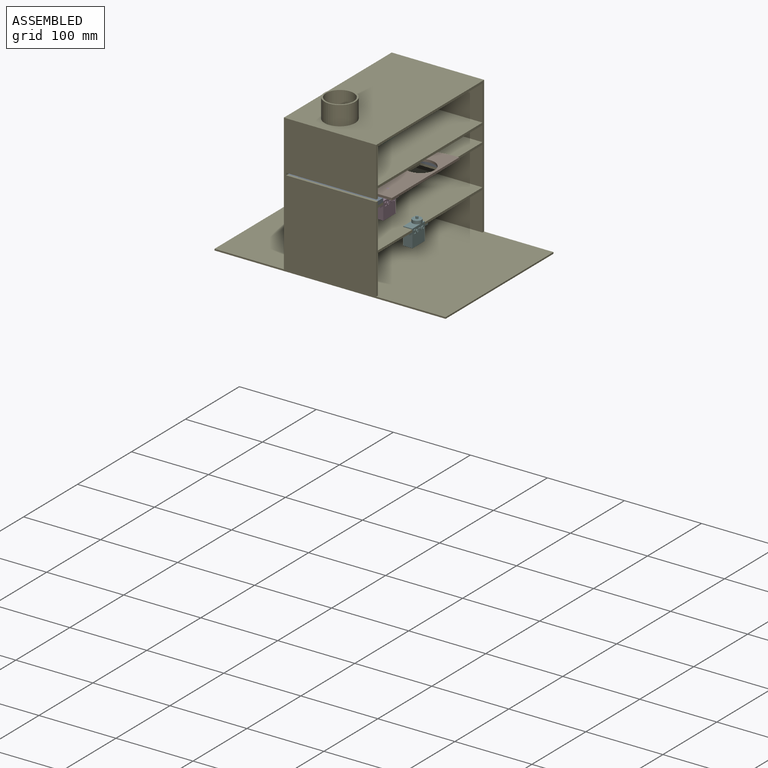
[diagram: assembled view]
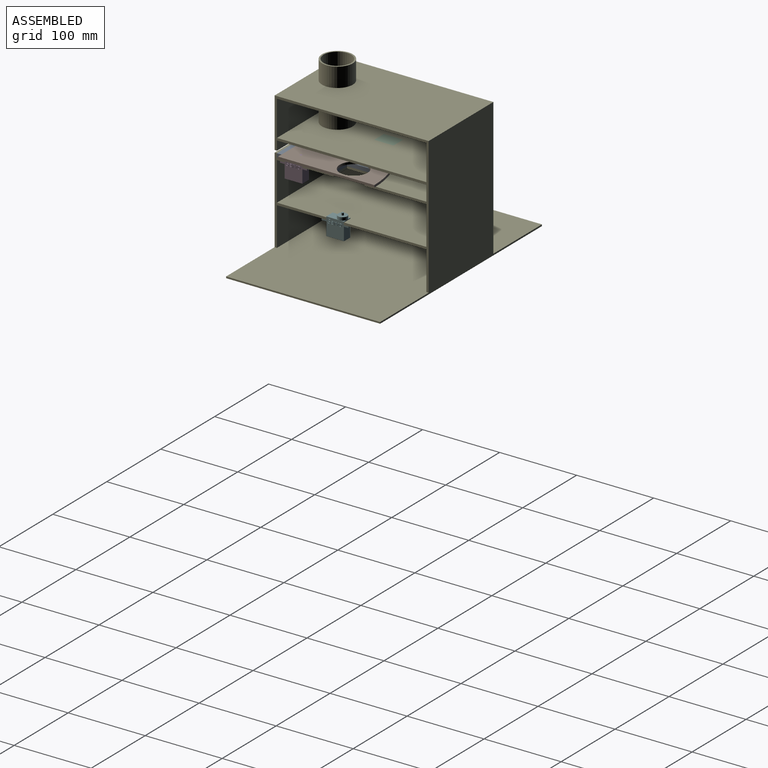
[diagram: assembled view, second angle]
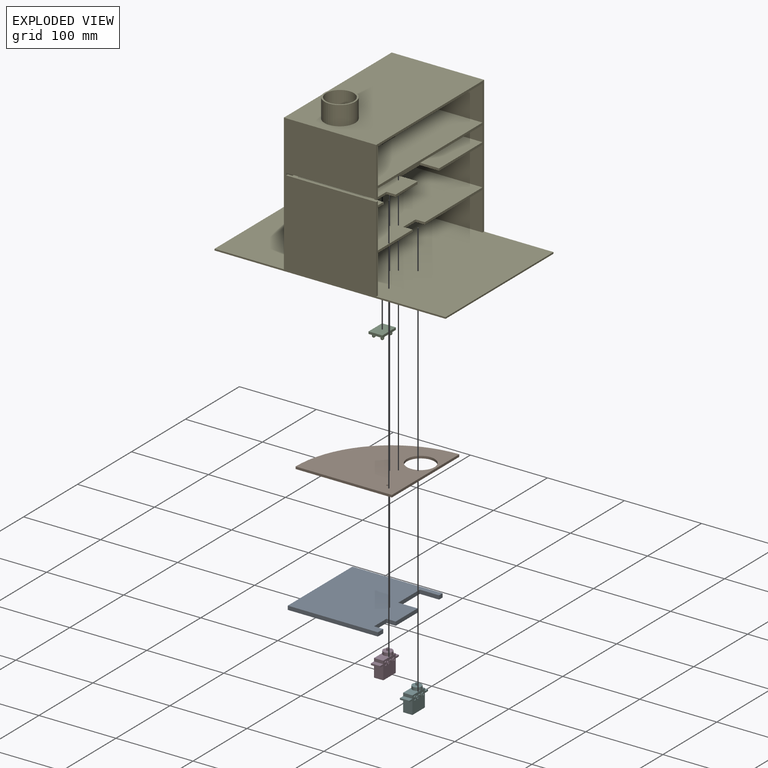
[diagram: exploded view]
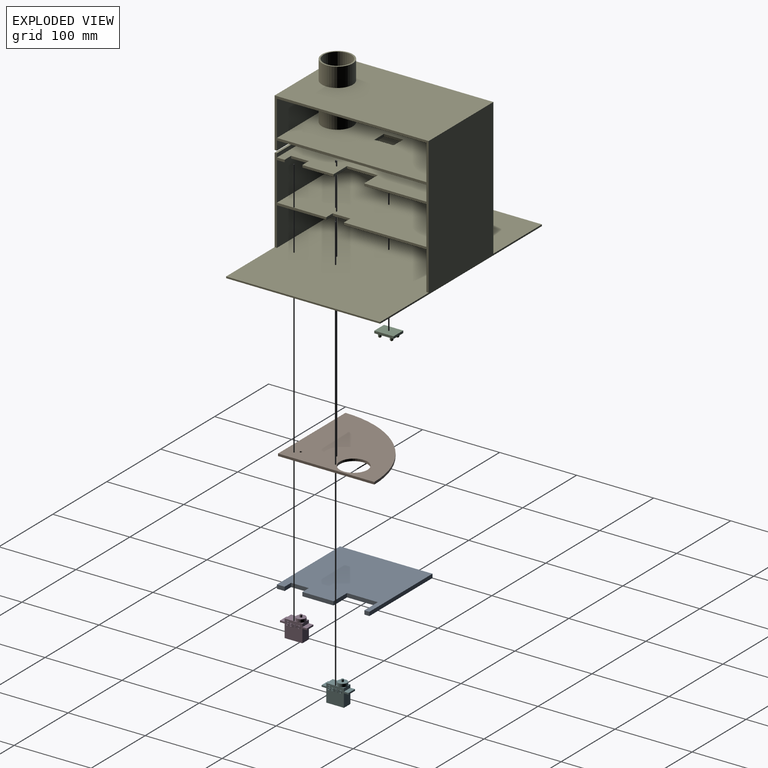
[diagram: exploded view, second angle]
ASSEMBLY  parts=6 mates=5
PART A: 14 faces, bbox 120x117x5 mm
  f0: plane 10x5mm, normal (0,-1,0), area 50mm2, adj f2,f4,f7,f11
  f1: plane 40.5x5mm, normal (0,-1,0), area 202.5mm2, adj f2,f7,f8,f13
  f2: plane 120x117mm, normal (0,0,-1), area 12764mm2, adj f0,f1,f3,f4,f5,f6,f8,f9
  f3: plane 120x5mm, normal (0,1,0), area 600mm2, adj f2,f4,f6,f7
  f4: plane 117x5mm, normal (-1,0,0), area 585mm2, adj f0,f2,f3,f7
  f5: plane 6.5x5mm, normal (0,-1,0), area 32.5mm2, adj f2,f6,f7,f10
  f6: plane 117x5mm, normal (1,0,0), area 585mm2, adj f2,f3,f5,f7
  f7: plane 120x117mm, normal (0,0,1), area 12764mm2, adj f0,f1,f3,f4,f5,f6,f8,f9
  f8: plane 25x5mm, normal (1,0,0), area 125mm2, adj f1,f2,f7,f9
  f9: plane 40x5mm, normal (0,-1,0), area 200mm2, adj f2,f7,f8,f10
  f10: plane 25x5mm, normal (-1,0,0), area 125mm2, adj f2,f5,f7,f9
  f11: plane 12x5mm, normal (1,0,0), area 60mm2, adj f0,f2,f7,f12
  f12: plane 23x5mm, normal (0,-1,0), area 115mm2, adj f2,f7,f11,f13
  f13: plane 12x5mm, normal (-1,0,0), area 60mm2, adj f1,f2,f7,f12
PART B: 7 faces, bbox 125x125x3 mm
  f0: plane 125x3mm, normal (0,-1,0), area 375mm2, adj f1,f2,f3,f4
  f1: cylinder r=125mm len=125mm, axis (0,0,-1), area 589mm2, adj f0,f2,f3,f4
  f2: plane 125x3mm, normal (-1,0,0), area 375mm2, adj f0,f1,f3,f4
  f3: plane 125x125mm, normal (0,0,1), area 11246.9mm2, adj f0,f1,f2,f5,f6
  f4: plane 125x125mm, normal (0,0,-1), area 11246.9mm2, adj f0,f1,f2,f5,f6
  f5: cylinder r=18mm len=36mm, axis (0,0,1), area 339.3mm2, adj f3,f4
  f6: cylinder r=1.5mm len=3mm, axis (0,0,1), area 28.3mm2, adj f3,f4
PART C: 19 faces, bbox 25x18x8 mm
  f0: plane 25x3mm, normal (0,1,0), area 75mm2, adj f1,f3,f4,f5
  f1: plane 18x3mm, normal (-1,0,0), area 54mm2, adj f0,f2,f4,f5
  f2: plane 25x3mm, normal (0,-1,0), area 75mm2, adj f1,f3,f4,f5
  f3: plane 18x3mm, normal (1,0,0), area 54mm2, adj f0,f2,f4,f5
  f4: plane 25x18mm, normal (0,0,1), area 390.7mm2, adj f0,f1,f2,f3,f6,f7,f8,f9
  f5: plane 25x18mm, normal (0,0,-1), area 450mm2, adj f0,f1,f2,f3
  f6: cylinder r=2mm len=4mm, axis (0,0,-1), area 37.7mm2, adj f4,f11
  f7: cylinder r=2mm len=4mm, axis (0,0,-1), area 37.7mm2, adj f4,f10
  f8: cylinder r=2mm len=4mm, axis (0,0,-1), area 37.7mm2, adj f4,f12
  f9: cylinder r=2mm len=4mm, axis (0,0,-1), area 37.7mm2, adj f4,f13
  f10: sphere r=2mm, area 25.1mm2, adj f7
  f11: sphere r=2mm, area 25.1mm2, adj f6
  f12: sphere r=2mm, area 25.1mm2, adj f8
  f13: sphere r=2mm, area 25.1mm2, adj f9
  f14: plane 1x1mm, normal (0,0,1), area 1mm2, adj f15,f16,f17,f18
  f15: plane 3x1mm, normal (-0.71,0,0.71), area 2.8mm2, adj f4,f14,f16,f17
  f16: plane 3x1mm, normal (0,-0.71,0.71), area 2.8mm2, adj f4,f14,f15,f18
  f17: plane 3x1mm, normal (0,0.71,0.71), area 2.8mm2, adj f4,f14,f15,f18
  f18: plane 3x1mm, normal (0.71,0,0.71), area 2.8mm2, adj f4,f14,f16,f17
PART D: 113 faces, bbox 35x13x30 mm
  f0: plane 35x23mm, normal (0,-1,0), area 519.9mm2, adj f2,f3,f4,f5,f7,f8,f9,f10
  f1: plane 6x6mm, normal (0,0,1), area 7.7mm2, adj f3,f6,f16
  f2: plane 17x12mm, normal (0,0,1), area 147.5mm2, adj f0,f5,f6,f16
  f3: plane 12x4mm, normal (1,0,0), area 48mm2, adj f0,f1,f6,f8,f13
  f4: plane 17x12mm, normal (1,0,0), area 204mm2, adj f0,f6,f9,f14
  f5: plane 12x4mm, normal (-1,0,0), area 48mm2, adj f0,f2,f6,f10
  f6: plane 35x23mm, normal (0,1,0), area 553mm2, adj f1,f2,f3,f4,f5,f7,f9,f10
  f7: plane 17x12mm, normal (-1,0,0), area 204mm2, adj f0,f6,f9,f11
  f8: plane 6x6mm, normal (0,0,1), area 7.7mm2, adj f0,f3,f16
  f9: plane 23x12mm, normal (0,0,-1), area 276mm2, adj f0,f4,f6,f7
  f10: plane 12x6mm, normal (0,0,1), area 72mm2, adj f0,f5,f6,f12
  f11: plane 12x6mm, normal (0,0,-1), area 72mm2, adj f0,f6,f7,f12
  f12: plane 12x2mm, normal (-1,0,0), area 24mm2, adj f0,f6,f10,f11
  f13: plane 12x6mm, normal (0,0,1), area 72mm2, adj f0,f3,f6,f15
  f14: plane 12x6mm, normal (0,0,-1), area 72mm2, adj f0,f4,f6,f15
  f15: plane 12x2mm, normal (1,0,0), area 24mm2, adj f0,f6,f13,f14
  f16: cylinder r=6mm len=12mm, axis (0,0,-1), area 150.8mm2, adj f1,f2,f8,f17
  f17: plane 12x12mm, normal (0,0,1), area 106mm2, adj f16,f18
  f18: cylinder r=1.5mm len=3mm, axis (0,0,-1), area 28.3mm2, adj f17,f19
  f19: plane 3x3mm, normal (0,0,1), area 7.1mm2, adj f18
  f20: extruded ~1x0.93mm, area 1mm2, adj f0,f21,f46,f47
  f21: extruded ~1x0.48mm, area 0.5mm2, adj f0,f20,f22,f47
  f22: extruded ~1x0.4mm, area 0.4mm2, adj f0,f21,f23,f47
  f23: extruded ~1x0.78mm, area 0.9mm2, adj f0,f22,f24,f47
  f24: extruded ~1x0.95mm, area 1.1mm2, adj f0,f23,f25,f47
  f25: extruded ~1x0.92mm, area 1mm2, adj f0,f24,f26,f47
  f26: extruded ~1.03x1mm, area 1.2mm2, adj f0,f25,f27,f47
  f27: extruded ~1x0.77mm, area 0.8mm2, adj f0,f26,f28,f47
  f28: extruded ~1x0.36mm, area 0.5mm2, adj f0,f27,f29,f47
  f29: extruded ~1x0.44mm, area 0.5mm2, adj f0,f28,f30,f47
  f30: extruded ~1x0.63mm, area 0.7mm2, adj f0,f29,f31,f47
  f31: extruded ~1x0.9mm, area 0.9mm2, adj f0,f30,f32,f47
  f32: extruded ~1x0.74mm, area 0.7mm2, adj f0,f31,f33,f47
  f33: extruded ~1x0.69mm, area 0.7mm2, adj f0,f32,f34,f47
  f34: plane 1x0.58mm, normal (-1,0,0), area 0.6mm2, adj f0,f33,f35,f47
  f35: extruded ~1.41x1mm, area 1.4mm2, adj f0,f34,f36,f47
  f36: extruded ~1.34x1mm, area 1.4mm2, adj f0,f35,f37,f47
  f37: extruded ~1.06x1mm, area 1.2mm2, adj f0,f36,f38,f47
  f38: extruded ~1x0.86mm, area 0.9mm2, adj f0,f37,f39,f47
  f39: extruded ~1.12x1mm, area 1.3mm2, adj f0,f38,f40,f47
  f40: extruded ~1x0.72mm, area 0.8mm2, adj f0,f39,f41,f47
  f41: extruded ~1x0.33mm, area 0.5mm2, adj f0,f40,f42,f47
  f42: extruded ~1x0.44mm, area 0.5mm2, adj f0,f41,f43,f47
  f43: extruded ~1x0.57mm, area 0.7mm2, adj f0,f42,f44,f47
  f44: extruded ~1x0.74mm, area 0.8mm2, adj f0,f43,f45,f47
  f45: extruded ~1.24x1mm, area 1.3mm2, adj f0,f44,f46,f47
  f46: plane 1x0.52mm, normal (0.94,0,-0.34), area 0.6mm2, adj f0,f20,f45,f47
  f47: plane 5.3x3.24mm, normal (0,-1,0), area 6.1mm2, adj f20,f21,f22,f23,f24,f25,f26,f27
  f48: extruded ~1x0.74mm, area 0.8mm2, adj f49,f66,f67,f68
  f49: extruded ~1x0.71mm, area 0.8mm2, adj f48,f50,f67,f68
  f50: extruded ~1x0.85mm, area 0.9mm2, adj f49,f51,f67,f68
  f51: plane 2.02x1mm, normal (0,0,1), area 2mm2, adj f50,f66,f67,f68
  f52: extruded ~1.35x1mm, area 1.5mm2, adj f0,f53,f65,f67
  f53: extruded ~1x0.67mm, area 0.7mm2, adj f0,f52,f54,f67
  f54: extruded ~1x0.59mm, area 0.6mm2, adj f0,f53,f55,f67
  f55: plane 1x0.52mm, normal (1,0,0), area 0.5mm2, adj f0,f54,f56,f67
  f56: extruded ~1.23x1mm, area 1.3mm2, adj f0,f55,f57,f67
  f57: extruded ~1x0.92mm, area 1mm2, adj f0,f56,f58,f67
  f58: extruded ~1.03x1mm, area 1.1mm2, adj f0,f57,f59,f67
  f59: plane 2.66x1mm, normal (0,0,-1), area 2.7mm2, adj f0,f58,f60,f67
  f60: plane 1x0.37mm, normal (1,0,0), area 0.4mm2, adj f0,f59,f61,f67
  f61: extruded ~1.26x1mm, area 1.4mm2, adj f0,f60,f62,f67
  f62: extruded ~1.15x1mm, area 1.3mm2, adj f0,f61,f63,f67
  f63: extruded ~1.24x1mm, area 1.4mm2, adj f0,f62,f64,f67
  f64: extruded ~1.49x1mm, area 1.6mm2, adj f0,f63,f65,f67
  f65: extruded ~1.45x1mm, area 1.6mm2, adj f0,f52,f64,f67
  f66: extruded ~1x0.84mm, area 0.9mm2, adj f48,f51,f67,f68
  f67: plane 4.01x3.27mm, normal (0,-1,0), area 6mm2, adj f48,f49,f50,f51,f52,f53,f54,f55
  f68: plane 2.02x1.14mm, normal (0,-1,0), area 1.9mm2, adj f48,f49,f50,f51,f66
  f69: extruded ~1x0.46mm, area 0.5mm2, adj f0,f70,f81,f82
  f70: extruded ~1x0.67mm, area 0.7mm2, adj f0,f69,f71,f82
  f71: extruded ~1x0.58mm, area 0.8mm2, adj f0,f70,f72,f82
  f72: plane 1x0.03mm, normal (0,0,1), area 0mm2, adj f0,f71,f73,f82
  f73: plane 1x0.72mm, normal (1,0,0.09), area 0.7mm2, adj f0,f72,f74,f82
  f74: plane 1x0.48mm, normal (0,0,1), area 0.5mm2, adj f0,f73,f75,f82
  f75: plane 3.86x1mm, normal (-1,0,0), area 3.9mm2, adj f0,f74,f76,f82
  f76: plane 1x0.59mm, normal (0,0,-1), area 0.6mm2, adj f0,f75,f77,f82
  f77: plane 2.07x1mm, normal (1,0,0), area 2.1mm2, adj f0,f76,f78,f82
  f78: extruded ~1x0.95mm, area 1mm2, adj f0,f77,f79,f82
  f79: extruded ~1x0.8mm, area 0.9mm2, adj f0,f78,f80,f82
  f80: extruded ~1x0.42mm, area 0.4mm2, adj f0,f79,f81,f82
  f81: plane 1x0.54mm, normal (0.99,0,-0.15), area 0.5mm2, adj f0,f69,f80,f82
  f82: plane 3.93x2.22mm, normal (0,-1,0), area 3.1mm2, adj f69,f70,f71,f72,f73,f74,f75,f76
  f83: plane 3.86x1.47mm, normal (-0.93,0,-0.35), area 4.1mm2, adj f0,f84,f92,f93
  f84: plane 1x0.68mm, normal (0,0,-1), area 0.7mm2, adj f0,f83,f85,f93
  f85: plane 3.86x1.47mm, normal (0.93,0,-0.35), area 4.1mm2, adj f0,f84,f86,f93
  f86: plane 1x0.63mm, normal (0,0,1), area 0.6mm2, adj f0,f85,f87,f93
  f87: extruded ~2.56x1mm, area 2.7mm2, adj f0,f86,f88,f93
  f88: extruded ~1x0.77mm, area 0.8mm2, adj f0,f87,f89,f93
  f89: plane 1x0.03mm, normal (0,0,1), area 0mm2, adj f0,f88,f90,f93
  f90: extruded ~1.04x1mm, area 1.1mm2, adj f0,f89,f91,f93
  f91: plane 2.29x1mm, normal (0.94,0,0.34), area 2.4mm2, adj f0,f90,f92,f93
  f92: plane 1x0.63mm, normal (0,0,1), area 0.6mm2, adj f0,f83,f91,f93
  f93: plane 3.86x3.62mm, normal (0,-1,0), area 4.4mm2, adj f83,f84,f85,f86,f87,f88,f89,f90
  f94: extruded ~1.13x1mm, area 1.2mm2, adj f95,f110,f111,f112
  f95: extruded ~1.12x1mm, area 1.2mm2, adj f94,f96,f111,f112
  f96: extruded ~1x0.87mm, area 1mm2, adj f95,f97,f111,f112
  f97: extruded ~1x0.88mm, area 1mm2, adj f96,f98,f111,f112
  f98: extruded ~1.12x1mm, area 1.2mm2, adj f97,f99,f111,f112
  f99: extruded ~1.13x1mm, area 1.2mm2, adj f98,f100,f111,f112
  f100: extruded ~1x0.87mm, area 1mm2, adj f99,f110,f111,f112
  f101: extruded ~1.48x1mm, area 1.6mm2, adj f0,f102,f109,f111
  f102: extruded ~1.46x1mm, area 1.6mm2, adj f0,f101,f103,f111
  f103: extruded ~1.29x1mm, area 1.4mm2, adj f0,f102,f104,f111
  f104: extruded ~1.31x1mm, area 1.5mm2, adj f0,f103,f105,f111
  f105: extruded ~1.47x1mm, area 1.6mm2, adj f0,f104,f106,f111
  f106: extruded ~1.07x1mm, area 1.1mm2, adj f0,f105,f107,f111
  f107: extruded ~1x0.7mm, area 0.9mm2, adj f0,f106,f108,f111
  f108: extruded ~1x0.92mm, area 1mm2, adj f0,f107,f109,f111
  f109: extruded ~1.31x1mm, area 1.5mm2, adj f0,f101,f108,f111
  f110: extruded ~1x0.87mm, area 1mm2, adj f94,f100,f111,f112
  f111: plane 4.01x3.55mm, normal (0,-1,0), area 5.7mm2, adj f94,f95,f96,f97,f98,f99,f100,f101
  f112: plane 3.02x2.34mm, normal (0,-1,0), area 5.9mm2, adj f94,f95,f96,f97,f98,f99,f100,f110
PART E: 53 faces, bbox 300x200x205 mm
  f0: plane 200x178mm, normal (1,0,0), area 2452.5mm2, adj f1,f4,f5,f6,f7,f8,f9,f10
  f1: plane 117x12mm, normal (0,1,0), area 1404mm2, adj f0,f6,f27,f51
  f2: plane 111x67mm, normal (1,0,0), area 555mm2, adj f4,f5,f7,f9,f12,f18,f21,f22
  f3: plane 40.5x3mm, normal (1,0,0), area 121.5mm2, adj f7,f21,f36,f40
  f4: plane 194x117mm, normal (0,0,-1), area 22422mm2, adj f0,f2,f18,f19,f20,f42,f43,f44
  f5: plane 194x117mm, normal (0,0,1), area 22422mm2, adj f0,f2,f22,f23,f24,f42,f43,f44
  f6: plane 194x117mm, normal (0,0,-1), area 20991.4mm2, adj f0,f1,f26,f27,f32,f33,f34,f35
  f7: plane 194x117mm, normal (0,0,1), area 21422mm2, adj f0,f2,f3,f25,f26,f27,f36,f37
  f8: plane 194x117mm, normal (0,0,1), area 20991.4mm2, adj f0,f29,f30,f31,f32,f33,f34,f35
  f9: plane 207x200mm, normal (0,0,1), area 40698mm2, adj f0,f2,f10,f12,f13,f18,f19,f20
  f10: plane 300x180mm, normal (0,1,0), area 21960mm2, adj f0,f9,f11,f13,f14,f15,f16,f17
  f11: plane 200x2mm, normal (-1,0,0), area 400mm2, adj f10,f12,f14,f15
  f12: plane 300x180mm, normal (0,-1,0), area 21609mm2, adj f0,f2,f9,f11,f13,f14,f15,f16
  f13: plane 200x2mm, normal (1,0,0), area 400mm2, adj f9,f10,f12,f15
  f14: plane 200x90mm, normal (0,0,1), area 18000mm2, adj f10,f11,f12,f16
  f15: plane 300x200mm, normal (0,0,-1), area 60000mm2, adj f10,f11,f12,f13
  f16: plane 200x178mm, normal (-1,0,0), area 35600mm2, adj f10,f12,f14,f17
  f17: plane 200x120mm, normal (0,0,1), area 22743.4mm2, adj f0,f10,f12,f16,f48
  f18: plane 117x50mm, normal (0,1,0), area 5850mm2, adj f2,f4,f9,f20
  f19: plane 117x50mm, normal (0,-1,0), area 5850mm2, adj f0,f4,f9,f20
  f20: plane 194x50mm, normal (1,0,0), area 9700mm2, adj f4,f9,f18,f19
  f21: plane 194x117mm, normal (0,0,-1), area 21422mm2, adj f0,f2,f3,f22,f23,f24,f36,f37
  f22: plane 117x50mm, normal (0,1,0), area 5850mm2, adj f2,f5,f21,f24
  f23: plane 117x50mm, normal (0,-1,0), area 5850mm2, adj f0,f5,f21,f24
  f24: plane 194x50mm, normal (1,0,0), area 9700mm2, adj f5,f21,f22,f23
  f25: plane 117x5mm, normal (0,1,0), area 585mm2, adj f2,f7,f27,f52
  f26: plane 117x20mm, normal (0,-1,0), area 2340mm2, adj f0,f6,f7,f27
  f27: plane 197x20mm, normal (1,0,0), area 3889mm2, adj f1,f6,f7,f12,f25,f26,f51,f52
  f28: plane 194x117mm, normal (0,0,-1), area 21441.4mm2, adj f0,f29,f30,f31,f45
  f29: plane 117x46mm, normal (0,1,0), area 5382mm2, adj f0,f8,f28,f31
  f30: plane 117x46mm, normal (0,-1,0), area 5382mm2, adj f0,f8,f28,f31
  f31: plane 194x46mm, normal (1,0,0), area 8924mm2, adj f8,f28,f29,f30
  f32: plane 18x3mm, normal (0,-1,0), area 54mm2, adj f6,f8,f33,f35
  f33: plane 25x3mm, normal (1,0,0), area 75mm2, adj f6,f8,f32,f34
  f34: plane 18x3mm, normal (0,1,0), area 54mm2, adj f6,f8,f33,f35
  f35: plane 25x3mm, normal (-1,0,0), area 75mm2, adj f6,f8,f32,f34
  f36: plane 25x3mm, normal (0,1,0), area 75mm2, adj f3,f7,f21,f38
  f37: plane 25x3mm, normal (0,-1,0), area 75mm2, adj f0,f7,f21,f38
  f38: plane 40x3mm, normal (1,0,0), area 120mm2, adj f7,f21,f36,f37
  f39: plane 12x3mm, normal (0,1,0), area 36mm2, adj f2,f7,f21,f41
  f40: plane 12x3mm, normal (0,-1,0), area 36mm2, adj f3,f7,f21,f41
  f41: plane 23x3mm, normal (1,0,0), area 69mm2, adj f7,f21,f39,f40
  f42: plane 12x3mm, normal (0,1,0), area 36mm2, adj f2,f4,f5,f44
  f43: plane 12x3mm, normal (0,-1,0), area 36mm2, adj f0,f4,f5,f44
  f44: plane 23x3mm, normal (1,0,0), area 69mm2, adj f4,f5,f42,f43
  f45: cylinder r=20mm len=46mm, axis (0,0,1), area 5780.5mm2, adj f8,f28
  f46: cylinder r=20mm len=40mm, axis (0,0,1), area 1131mm2, adj f6,f47
  f47: plane 40x40mm, normal (0,0,-1), area 238.8mm2, adj f46,f50
  f48: cylinder r=20mm len=40mm, axis (0,0,-1), area 3141.6mm2, adj f17,f49
  f49: plane 40x40mm, normal (0,0,1), area 238.8mm2, adj f48,f50
  f50: cylinder r=18mm len=86mm, axis (0,0,1), area 9726.4mm2, adj f47,f49
  f51: plane 117x3mm, normal (0,0,-1), area 351mm2, adj f0,f1,f12,f27
  f52: plane 117x3mm, normal (0,0,1), area 351mm2, adj f2,f12,f25,f27
PART F: same geometry as D
PLACE A rot(axis=(0,0,1),90deg) t=(-48.78,-48.14,96.91)mm
PLACE B rot(axis=(0,0,1),90deg) t=(12.58,18.88,101.91)mm
PLACE C rot(axis=(-0.71,0.71,0),180deg) t=(-41.77,41.46,119.91)mm
PLACE D rot(axis=(0,0,1),90deg) t=(13.57,-49.99,74.91)mm
PLACE E t=(-61.99,-5.72,-11.09)mm
PLACE F rot(axis=(0,0,1),90deg) t=(13.57,4.01,21.91)mm
MATE fastened D.f13 <-> E.f21  axis (0,0,1) through (20.44,-13.21,93.91)mm
MATE fastened C.f4 <-> E.f6  axis (0,0,-1) through (-41.01,41.33,116.91)mm
MATE fastened B.f6 <-> D.f16  axis (0,0,1) through (26.44,-19.21,104.91)mm
MATE fastened F.f13 <-> E.f4  axis (0,0,1) through (32.44,40.79,40.91)mm
MATE fastened A.f2 <-> E.f7  axis (0,0,-1) through (32.44,-46.21,96.91)mm
